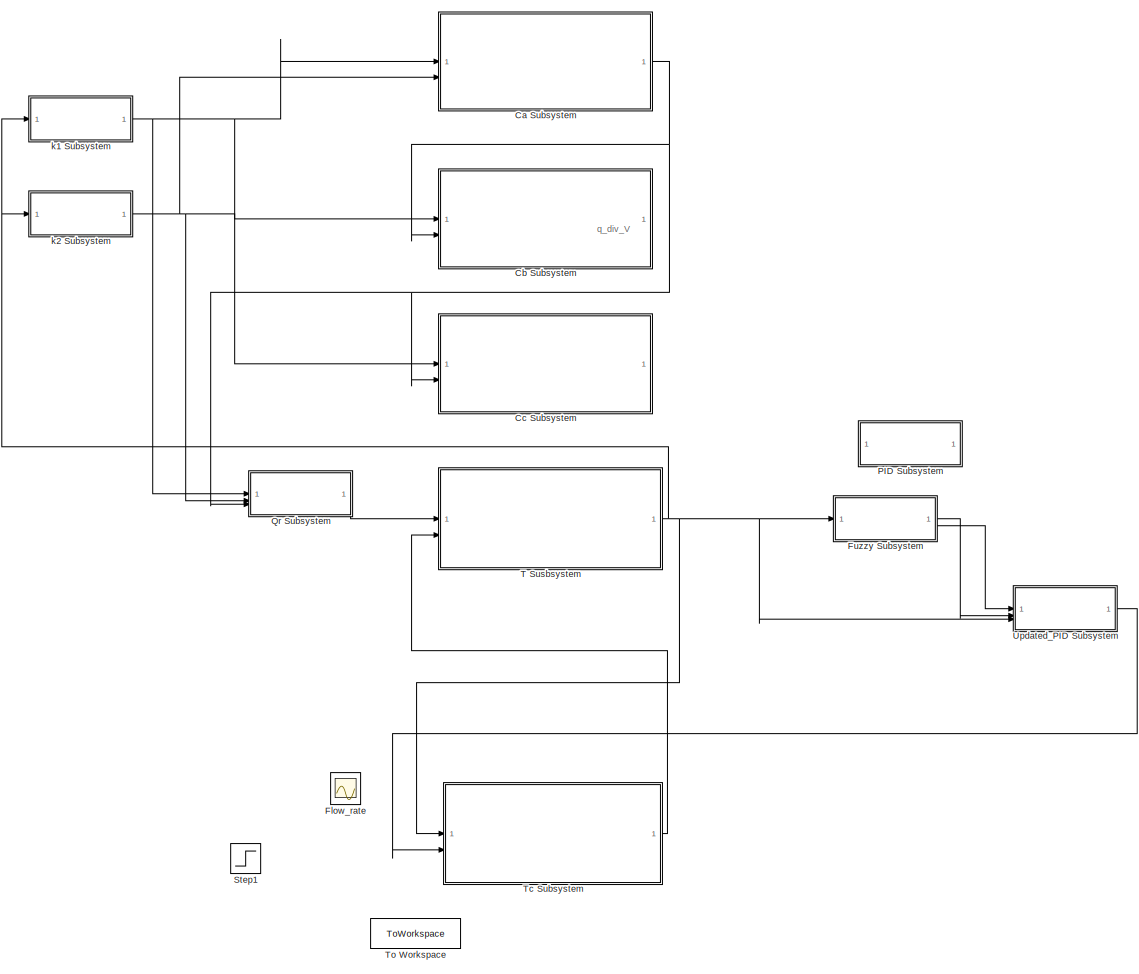
[diagram: root canvas - part 1/1, most of the canvas]
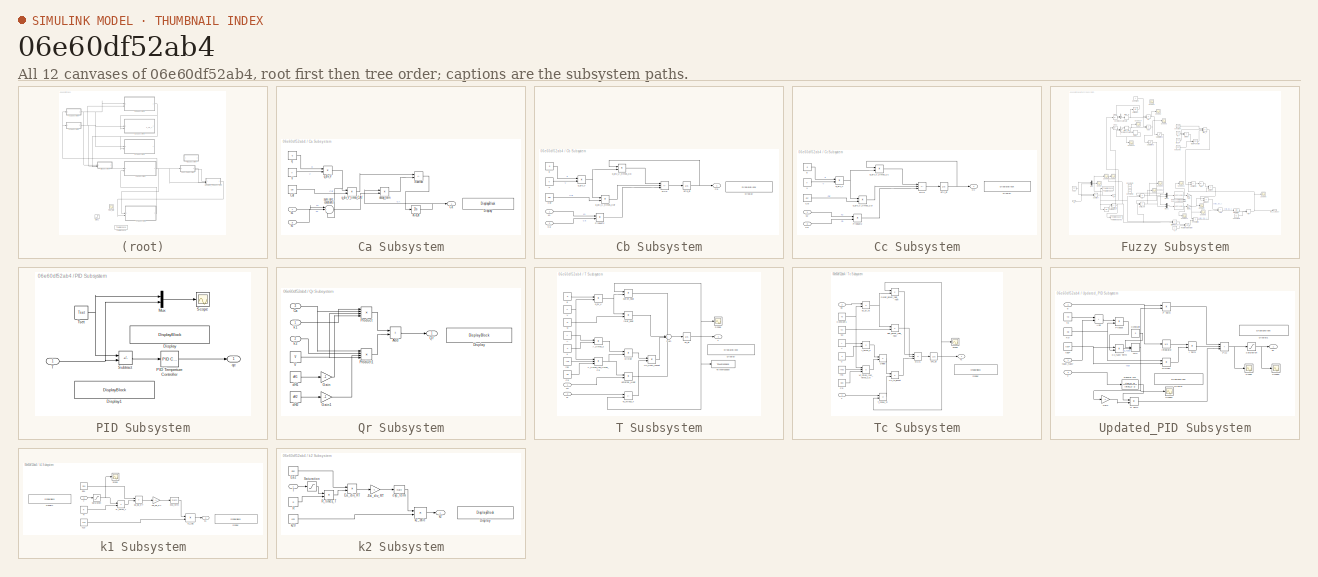
[diagram: thumbnail index - all 12 canvases of the model, root first then tree order]
MODEL slx_06e60df52ab4
KIND model
CONFIG AbsTol = auto
CONFIG EnableMultiTasking = off
CONFIG FixedStep = auto
CONFIG MaxStep = auto
CONFIG MinStep = 1e-6
CONFIG RelTol = 1e-4
CONFIG SampleTimeConstraint = Unconstrained
CONFIG SolverName = VariableStepAuto
CONFIG StartTime = 0.0
CONFIG StopTime = 1000
BLOCK [SubSystem] Ca Subsystem
BLOCK [Outport] Ca Subsystem/Ca
BLOCK [Constant] Ca Subsystem/Caf
  Value = Caf
BLOCK [DisplayBlock] Ca Subsystem/Display
  LabelPosition = Hide
  Transparency = 1
BLOCK [Sum] Ca Subsystem/Subtract
  IconShape = rectangular
  Inputs = +-
BLOCK [Constant] Ca Subsystem/V
  Value = V
BLOCK [Integrator] Ca Subsystem/dCa_dt
  InitialCondition = 4.22
BLOCK [Product] Ca Subsystem/decay_term
BLOCK [Inport] Ca Subsystem/k1
BLOCK [Inport] Ca Subsystem/k2
  Port = 2
BLOCK [Constant] Ca Subsystem/q
  Value = q
BLOCK [Product] Ca Subsystem/q_div_V
  Inputs = */
BLOCK [Product] Ca Subsystem/q_div_V_times_CAf
BLOCK [Sum] Ca Subsystem/sum_rate_constants
  Inputs = |+++
BLOCK [SubSystem] Cb Subsystem
BLOCK [Inport] Cb Subsystem/Ca
  Port = 2
BLOCK [Outport] Cb Subsystem/Cb
BLOCK [Constant] Cb Subsystem/Cbf
  Value = Cbf
BLOCK [DisplayBlock] Cb Subsystem/Display
  LabelPosition = Hide
  Transparency = 1
BLOCK [Product] Cb Subsystem/Product2
BLOCK [Sum] Cb Subsystem/RHS
  IconShape = rectangular
  Inputs = -++
BLOCK [Constant] Cb Subsystem/V
  Value = V
BLOCK [Integrator] Cb Subsystem/dCb_dt
BLOCK [Inport] Cb Subsystem/k1
BLOCK [Constant] Cb Subsystem/q
  Value = q
BLOCK [Product] Cb Subsystem/q_div_V
  Inputs = */
BLOCK [Product] Cb Subsystem/q_div_V_times_Cb
BLOCK [Product] Cb Subsystem/q_div_V_times_Cbf
BLOCK [SubSystem] Cc Subsystem
BLOCK [Inport] Cc Subsystem/Ca
  Port = 2
BLOCK [Outport] Cc Subsystem/Cc
BLOCK [Constant] Cc Subsystem/Ccf
  Value = Ccf
BLOCK [DisplayBlock] Cc Subsystem/Display
  LabelPosition = Hide
  Transparency = 1
BLOCK [Product] Cc Subsystem/Product2
BLOCK [Sum] Cc Subsystem/RHS
  IconShape = rectangular
  Inputs = -++
BLOCK [Constant] Cc Subsystem/V
  Value = V
BLOCK [Integrator] Cc Subsystem/dCc_dt
BLOCK [Inport] Cc Subsystem/k2
BLOCK [Constant] Cc Subsystem/q
  Value = q
BLOCK [Product] Cc Subsystem/q_div_V
  Inputs = */
BLOCK [Product] Cc Subsystem/q_div_V_times_Cc
BLOCK [Product] Cc Subsystem/q_div_V_times_Ccf
BLOCK [Scope] Flow_rate
  Floating = off
  NumInputPorts = 1
  ScopeSpecificationString = Simulink.scopes.TimeScopeBlockCfg('CurrentConfiguration', extmgr.ConfigurationSet(extmgr.Configuration('Core','General UI',true),extmgr.Configuration('Core','Source UI',true),extmgr.Configuration('Sources','WiredSimulink',true,'DataLoggingVariableName','ScopeData2'),extmgr.Configuration('Visuals','Time Domain',true,'SerializedDisplays',{struct('MinYLimReal','-0.01595','MaxYLimReal','0.00292','YLab...<+1448ch>
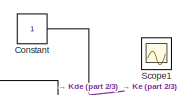
[diagram: Fuzzy Subsystem - part 1/3, top center region]
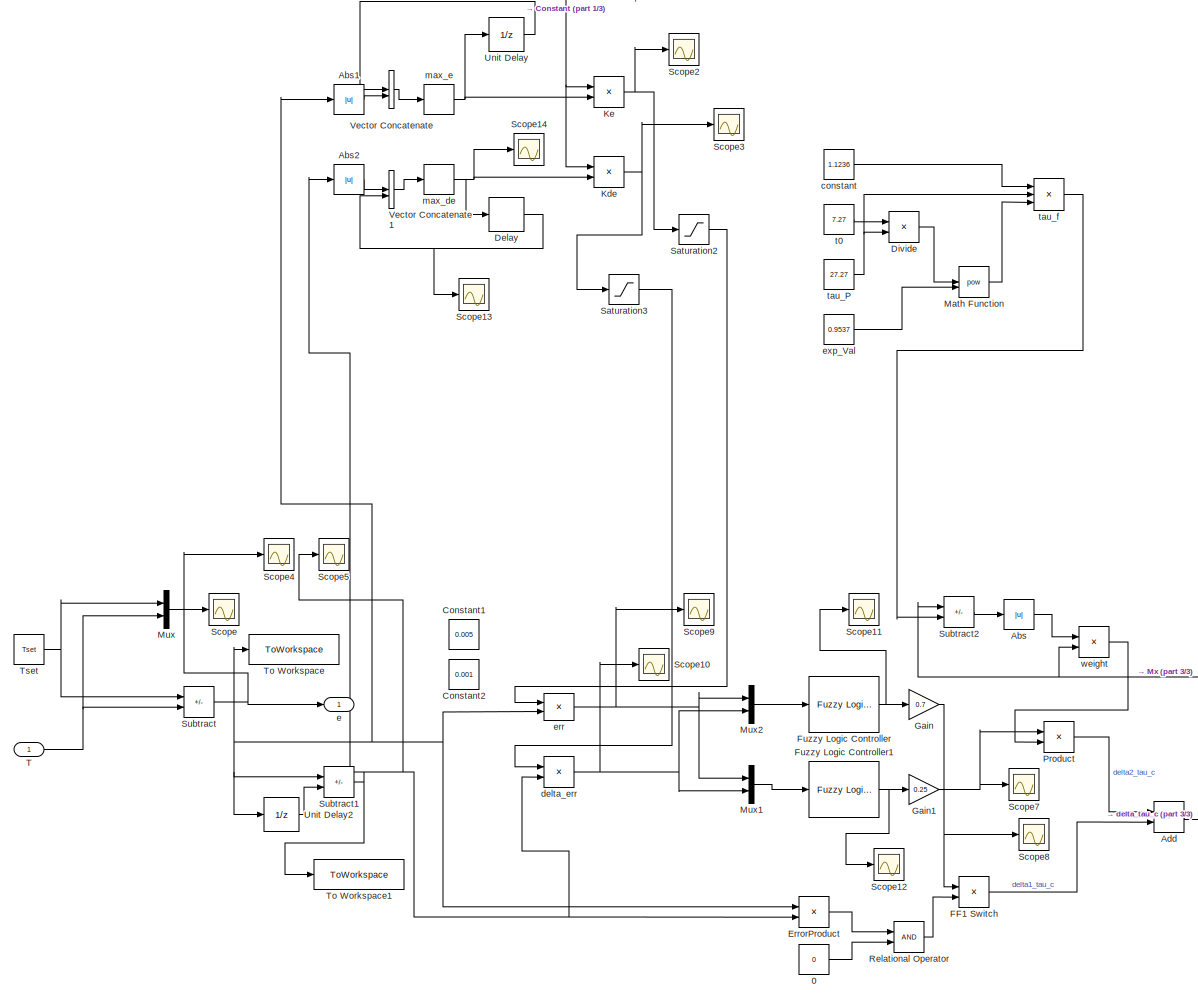
[diagram: Fuzzy Subsystem - part 2/3, most of the canvas]
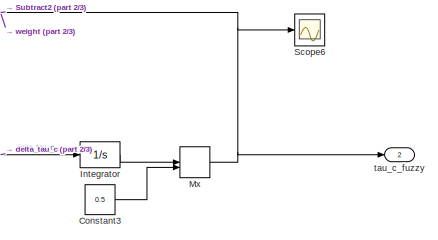
[diagram: Fuzzy Subsystem - part 3/3, bottom right region]
BLOCK [SubSystem] Fuzzy Subsystem
BLOCK [Constant] Fuzzy Subsystem/0
  Value = 0
BLOCK [Abs] Fuzzy Subsystem/Abs
  SaturateOnIntegerOverflow = off
BLOCK [Abs] Fuzzy Subsystem/Abs1
  SaturateOnIntegerOverflow = off
BLOCK [Abs] Fuzzy Subsystem/Abs2
  SaturateOnIntegerOverflow = off
BLOCK [Sum] Fuzzy Subsystem/Add
  IconShape = rectangular
BLOCK [Constant] Fuzzy Subsystem/Constant
BLOCK [Constant] Fuzzy Subsystem/Constant1
  Value = 0.005
BLOCK [Constant] Fuzzy Subsystem/Constant2
  Commented = on
  Value = 0.001
BLOCK [Constant] Fuzzy Subsystem/Constant3
  Value = 0.5
BLOCK [Delay] Fuzzy Subsystem/Delay
  DelayLength = 1
  InitialCondition = 0
  InputPortMap = u0
BLOCK [Product] Fuzzy Subsystem/Divide
  Inputs = */
BLOCK [Product] Fuzzy Subsystem/ErrorProduct
BLOCK [Product] Fuzzy Subsystem/FF1 Switch
BLOCK [Reference] Fuzzy Subsystem/Fuzzy Logic Controller  REF=fuzblock/Fuzzy Logic   (lib defined in mdl_858b3b3e7478)
Controller
  SourceBlock = fuzblock/Fuzzy Logic \nController
  SourceType = Fuzzy Inference System
BLOCK [Reference] Fuzzy Subsystem/Fuzzy Logic Controller1  REF=fuzblock/Fuzzy Logic   (lib defined in mdl_858b3b3e7478)
Controller
  SourceBlock = fuzblock/Fuzzy Logic \nController
  SourceType = Fuzzy Inference System
BLOCK [Gain] Fuzzy Subsystem/Gain
  Gain = 0.7
BLOCK [Gain] Fuzzy Subsystem/Gain1
  Gain = 0.25
BLOCK [Integrator] Fuzzy Subsystem/Integrator
  InitialCondition = 8.6842
BLOCK [Product] Fuzzy Subsystem/Kde
  Inputs = */
BLOCK [Product] Fuzzy Subsystem/Ke
  Inputs = */
BLOCK [Math] Fuzzy Subsystem/Math Function
  Operator = pow
BLOCK [Mux] Fuzzy Subsystem/Mux
  DisplayOption = bar
  Inputs = 2
BLOCK [Mux] Fuzzy Subsystem/Mux1
  DisplayOption = bar
  Inputs = 2
BLOCK [Mux] Fuzzy Subsystem/Mux2
  DisplayOption = bar
  Inputs = 2
BLOCK [MinMax] Fuzzy Subsystem/Mx
  Function = max
  Inputs = 2
BLOCK [Product] Fuzzy Subsystem/Product
BLOCK [RelationalOperator] Fuzzy Subsystem/Relational Operator
  InputSameDT = off
  OutDataTypeStr = boolean
  RndMeth = Simplest
BLOCK [Saturate] Fuzzy Subsystem/Saturation2
  LowerLimit = 0.01
  UpperLimit = 1
BLOCK [Saturate] Fuzzy Subsystem/Saturation3
  LowerLimit = 0.01
  UpperLimit = 1
BLOCK [Scope] Fuzzy Subsystem/Scope
  Floating = off
  NumInputPorts = 1
  ScopeSpecificationString = Simulink.scopes.TimeScopeBlockCfg('CurrentConfiguration', extmgr.ConfigurationSet(extmgr.Configuration('Core','General UI',true),extmgr.Configuration('Core','Source UI',true),extmgr.Configuration('Sources','WiredSimulink',true,'DataLoggingVariableName','ScopeData1'),extmgr.Configuration('Visuals','Time Domain',true,'SerializedDisplays',{struct('MinYLimReal','304.50917','MaxYLimReal','318.97083','Y...<+1480ch>
BLOCK [Scope] Fuzzy Subsystem/Scope1
  Floating = off
  NumInputPorts = 1
  ScopeSpecificationString = Simulink.scopes.TimeScopeBlockCfg('CurrentConfiguration', extmgr.ConfigurationSet(extmgr.Configuration('Core','General UI',true),extmgr.Configuration('Core','Source UI',true),extmgr.Configuration('Sources','WiredSimulink',true,'DataLoggingVariableName','ScopeData1'),extmgr.Configuration('Visuals','Time Domain',true),extmgr.Configuration('Tools','Plot Navigation',true),extmgr.Configuration('Tools',...<+40ch>
BLOCK [Scope] Fuzzy Subsystem/Scope10
  Floating = off
  NumInputPorts = 1
  ScopeSpecificationString = Simulink.scopes.TimeScopeBlockCfg('CurrentConfiguration', extmgr.ConfigurationSet(extmgr.Configuration('Core','General UI',true),extmgr.Configuration('Core','Source UI',true),extmgr.Configuration('Sources','WiredSimulink',true,'DataLoggingVariableName','ScopeData10'),extmgr.Configuration('Visuals','Time Domain',true,'SerializedDisplays',{struct('MinYLimReal','-1.25','MaxYLimReal','1.25','YLabelRea...<+1381ch>
BLOCK [Scope] Fuzzy Subsystem/Scope11
  Floating = off
  NumInputPorts = 1
  ScopeSpecificationString = Simulink.scopes.TimeScopeBlockCfg('CurrentConfiguration', extmgr.ConfigurationSet(extmgr.Configuration('Core','General UI',true),extmgr.Configuration('Core','Source UI',true),extmgr.Configuration('Sources','WiredSimulink',true,'DataLoggingVariableName','ScopeData1'),extmgr.Configuration('Visuals','Time Domain',true,'SerializedDisplays',{struct('MinYLimReal','0.00001','MaxYLimReal','0.00099','YLabe...<+1380ch>
BLOCK [Scope] Fuzzy Subsystem/Scope12
  Floating = off
  NumInputPorts = 1
  ScopeSpecificationString = Simulink.scopes.TimeScopeBlockCfg('CurrentConfiguration', extmgr.ConfigurationSet(extmgr.Configuration('Core','General UI',true),extmgr.Configuration('Core','Source UI',true),extmgr.Configuration('Sources','WiredSimulink',true,'DataLoggingVariableName','ScopeData2'),extmgr.Configuration('Visuals','Time Domain',true,'SerializedDisplays',{struct('MinYLimReal','-0.00029','MaxYLimReal','-0.00009','YLa...<+1385ch>
BLOCK [Scope] Fuzzy Subsystem/Scope13
  Floating = off
  NumInputPorts = 1
  ScopeSpecificationString = Simulink.scopes.TimeScopeBlockCfg('CurrentConfiguration', extmgr.ConfigurationSet(extmgr.Configuration('Core','General UI',true),extmgr.Configuration('Core','Source UI',true),extmgr.Configuration('Sources','WiredSimulink',true,'DataLoggingVariableName','ScopeData3'),extmgr.Configuration('Visuals','Time Domain',true,'SerializedDisplays',{struct('MinYLimReal','-0.78856','MaxYLimReal','7.09708','YLab...<+1419ch>
BLOCK [Scope] Fuzzy Subsystem/Scope14
  Floating = off
  NumInputPorts = 1
  ScopeSpecificationString = Simulink.scopes.TimeScopeBlockCfg('CurrentConfiguration', extmgr.ConfigurationSet(extmgr.Configuration('Core','General UI',true),extmgr.Configuration('Core','Source UI',true),extmgr.Configuration('Sources','WiredSimulink',true,'DataLoggingVariableName','ScopeData4'),extmgr.Configuration('Visuals','Time Domain',true,'SerializedDisplays',{struct('MinYLimReal','0.29108','MaxYLimReal','7.38024','YLabe...<+1363ch>
BLOCK [Scope] Fuzzy Subsystem/Scope2
  Floating = off
  NumInputPorts = 1
  ScopeSpecificationString = Simulink.scopes.TimeScopeBlockCfg('CurrentConfiguration', extmgr.ConfigurationSet(extmgr.Configuration('Core','General UI',true),extmgr.Configuration('Core','Source UI',true),extmgr.Configuration('Sources','WiredSimulink',true,'DataLoggingVariableName','ScopeData2'),extmgr.Configuration('Visuals','Time Domain',true,'SerializedDisplays',{struct('MinYLimReal','0.09938','MaxYLimReal','0.21118','YLabe...<+1359ch>
BLOCK [Scope] Fuzzy Subsystem/Scope3
  Floating = off
  NumInputPorts = 1
  ScopeSpecificationString = Simulink.scopes.TimeScopeBlockCfg('CurrentConfiguration', extmgr.ConfigurationSet(extmgr.Configuration('Core','General UI',true),extmgr.Configuration('Core','Source UI',true),extmgr.Configuration('Sources','WiredSimulink',true,'DataLoggingVariableName','ScopeData3'),extmgr.Configuration('Visuals','Time Domain',true,'SerializedDisplays',{struct('MinYLimReal','0.04363','MaxYLimReal','1.10626','YLabe...<+1360ch>
BLOCK [Scope] Fuzzy Subsystem/Scope4
  Floating = off
  NumInputPorts = 1
  ScopeSpecificationString = Simulink.scopes.TimeScopeBlockCfg('CurrentConfiguration', extmgr.ConfigurationSet(extmgr.Configuration('Core','General UI',true),extmgr.Configuration('Core','Source UI',true),extmgr.Configuration('Sources','WiredSimulink',true,'DataLoggingVariableName','ScopeData4'),extmgr.Configuration('Visuals','Time Domain',true,'SerializedDisplays',{struct('MinYLimReal','-3.9705','MaxYLimReal','10.49086','YLab...<+1398ch>
BLOCK [Scope] Fuzzy Subsystem/Scope5
  Floating = off
  NumInputPorts = 1
  ScopeSpecificationString = Simulink.scopes.TimeScopeBlockCfg('CurrentConfiguration', extmgr.ConfigurationSet(extmgr.Configuration('Core','General UI',true),extmgr.Configuration('Core','Source UI',true),extmgr.Configuration('Sources','WiredSimulink',true,'DataLoggingVariableName','ScopeData5'),extmgr.Configuration('Visuals','Time Domain',true,'SerializedDisplays',{struct('MinYLimReal','-6.16846','MaxYLimReal','8.09796','YLab...<+1397ch>
BLOCK [Scope] Fuzzy Subsystem/Scope6
  Floating = off
  NumInputPorts = 1
  ScopeSpecificationString = Simulink.scopes.TimeScopeBlockCfg('CurrentConfiguration', extmgr.ConfigurationSet(extmgr.Configuration('Core','General UI',true),extmgr.Configuration('Core','Source UI',true),extmgr.Configuration('Sources','WiredSimulink',true,'DataLoggingVariableName','ScopeData6'),extmgr.Configuration('Visuals','Time Domain',true,'SerializedDisplays',{struct('MinYLimReal','8.67114','MaxYLimReal','8.80172','YLabe...<+1386ch>
BLOCK [Scope] Fuzzy Subsystem/Scope7
  Floating = off
  NumInputPorts = 1
  ScopeSpecificationString = Simulink.scopes.TimeScopeBlockCfg('CurrentConfiguration', extmgr.ConfigurationSet(extmgr.Configuration('Core','General UI',true),extmgr.Configuration('Core','Source UI',true),extmgr.Configuration('Sources','WiredSimulink',true,'DataLoggingVariableName','ScopeData7'),extmgr.Configuration('Visuals','Time Domain',true,'SerializedDisplays',{struct('MinYLimReal','0.0002808576','MaxYLimReal','0.00028086...<+1421ch>
BLOCK [Scope] Fuzzy Subsystem/Scope8
  Floating = off
  NumInputPorts = 1
  ScopeSpecificationString = Simulink.scopes.TimeScopeBlockCfg('CurrentConfiguration', extmgr.ConfigurationSet(extmgr.Configuration('Core','General UI',true),extmgr.Configuration('Core','Source UI',true),extmgr.Configuration('Sources','WiredSimulink',true,'DataLoggingVariableName','ScopeData8'),extmgr.Configuration('Visuals','Time Domain',true,'SerializedDisplays',{struct('MinYLimReal','0.00001','MaxYLimReal','0.00069','YLabe...<+1361ch>
BLOCK [Scope] Fuzzy Subsystem/Scope9
  Floating = off
  NumInputPorts = 1
  ScopeSpecificationString = Simulink.scopes.TimeScopeBlockCfg('CurrentConfiguration', extmgr.ConfigurationSet(extmgr.Configuration('Core','General UI',true),extmgr.Configuration('Core','Source UI',true),extmgr.Configuration('Sources','WiredSimulink',true,'DataLoggingVariableName','ScopeData9'),extmgr.Configuration('Visuals','Time Domain',true,'SerializedDisplays',{struct('MinYLimReal','-0.47347','MaxYLimReal','1.16372','YLab...<+1362ch>
BLOCK [Sum] Fuzzy Subsystem/Subtract
  IconShape = rectangular
  Inputs = +-
BLOCK [Sum] Fuzzy Subsystem/Subtract1
  IconShape = rectangular
  Inputs = +-
BLOCK [Sum] Fuzzy Subsystem/Subtract2
  IconShape = rectangular
  Inputs = +-
BLOCK [Inport] Fuzzy Subsystem/T
BLOCK [ToWorkspace] Fuzzy Subsystem/To Workspace
  FixptAsFi = on
  MaxDataPoints = inf
  SampleTime = -1
  VariableName = e
BLOCK [ToWorkspace] Fuzzy Subsystem/To Workspace1
  FixptAsFi = on
  MaxDataPoints = inf
  SampleTime = -1
  VariableName = delta_e
BLOCK [Constant] Fuzzy Subsystem/Tset
  Value = Tset
  VectorParams1D = off
BLOCK [UnitDelay] Fuzzy Subsystem/Unit Delay
  HasFrameUpgradeWarning = on
  InitialCondition = 0.1
  SampleTime = -1
BLOCK [UnitDelay] Fuzzy Subsystem/Unit Delay2
  HasFrameUpgradeWarning = on
  InitialCondition = 4
  SampleTime = -1
BLOCK [Concatenate] Fuzzy Subsystem/Vector Concatenate
BLOCK [Concatenate] Fuzzy Subsystem/Vector Concatenate1
BLOCK [Constant] Fuzzy Subsystem/constant
  Value = 1.1236
BLOCK [Product] Fuzzy Subsystem/delta_err
BLOCK [Outport] Fuzzy Subsystem/e
BLOCK [Product] Fuzzy Subsystem/err
BLOCK [Constant] Fuzzy Subsystem/exp_Val
  Value = 0.9537
BLOCK [MinMax] Fuzzy Subsystem/max_de
  Function = max
BLOCK [MinMax] Fuzzy Subsystem/max_e
  Function = max
BLOCK [Constant] Fuzzy Subsystem/t0
  Value = 7.27
BLOCK [Constant] Fuzzy Subsystem/tau_P
  Value = 27.27
BLOCK [Outport] Fuzzy Subsystem/tau_c_fuzzy
  Port = 2
BLOCK [Product] Fuzzy Subsystem/tau_f
  Inputs = 3
BLOCK [Product] Fuzzy Subsystem/weight
  Inputs = */
BLOCK [SubSystem] PID Subsystem
BLOCK [DisplayBlock] PID Subsystem/Display
  LabelPosition = Hide
  Transparency = 1
BLOCK [DisplayBlock] PID Subsystem/Display1
  LabelPosition = Hide
  Transparency = 1
BLOCK [Mux] PID Subsystem/Mux
  DisplayOption = bar
  Inputs = 2
BLOCK [Reference] PID Subsystem/PID Tempreture Controller  REF=slpidlib/PID Controller
  LibrarySourceBlock = simulink/Continuous/PID Controller
  SourceBlock = slpidlib/PID Controller
  SourceType = PID 1dof
BLOCK [Scope] PID Subsystem/Scope
  Floating = off
  NumInputPorts = 1
  ScopeSpecificationString = Simulink.scopes.TimeScopeBlockCfg('CurrentConfiguration', extmgr.ConfigurationSet(extmgr.Configuration('Core','General UI',true),extmgr.Configuration('Core','Source UI',true),extmgr.Configuration('Sources','WiredSimulink',true,'DataLoggingVariableName','ScopeData1'),extmgr.Configuration('Visuals','Time Domain',true,'SerializedDisplays',{struct('MinYLimReal','304.41008','MaxYLimReal','321.83642','Y...<+1473ch>
BLOCK [Sum] PID Subsystem/Subtract
  IconShape = rectangular
  Inputs = +-
BLOCK [Inport] PID Subsystem/T
BLOCK [Constant] PID Subsystem/Tset
  Value = Tset
BLOCK [Outport] PID Subsystem/qc
BLOCK [SubSystem] Qr Subsystem
BLOCK [Sum] Qr Subsystem/Add
  IconShape = rectangular
BLOCK [Inport] Qr Subsystem/Ca
  Port = 3
BLOCK [DisplayBlock] Qr Subsystem/Display
  LabelPosition = Hide
  Transparency = 1
BLOCK [Gain] Qr Subsystem/Gain
  Gain = -1
BLOCK [Gain] Qr Subsystem/Gain1
  Gain = -1
BLOCK [Product] Qr Subsystem/Product
  Inputs = 4
BLOCK [Product] Qr Subsystem/Product1
  Inputs = 4
BLOCK [Outport] Qr Subsystem/Qr
BLOCK [Constant] Qr Subsystem/V
  Value = V
BLOCK [Constant] Qr Subsystem/dH1
  Value = dH1
BLOCK [Constant] Qr Subsystem/dH2
  Value = dH2
BLOCK [Inport] Qr Subsystem/k1
BLOCK [Inport] Qr Subsystem/k2
  Port = 2
BLOCK [Step] Step1
  After = 0.010
  Before = 0.005
  Commented = on
  SampleTime = 0
  Time = 200
BLOCK [SubSystem] T Susbsystem
BLOCK [Constant] T Susbsystem/A
  Value = A
BLOCK [Product] T Susbsystem/A_times_u
BLOCK [Constant] T Susbsystem/Cp
  Value = Cp
BLOCK [DisplayBlock] T Susbsystem/Display
  LabelPosition = Hide
  Transparency = 1
BLOCK [Product] T Susbsystem/Divide
  Inputs = */
BLOCK [Product] T Susbsystem/HT_from_jacket
BLOCK [Inport] T Susbsystem/Qr
BLOCK [Scope] T Susbsystem/Scope
  Floating = off
  NumInputPorts = 1
  ScopeSpecificationString = Simulink.scopes.TimeScopeBlockCfg('CurrentConfiguration', extmgr.ConfigurationSet(extmgr.Configuration('Core','General UI',true),extmgr.Configuration('Core','Source UI',true),extmgr.Configuration('Sources','WiredSimulink',true,'DataLoggingVariableName','ScopeData3'),extmgr.Configuration('Visuals','Time Domain',true,'SerializedDisplays',{struct('MinYLimReal','304.50917','MaxYLimReal','318.97083','Y...<+1378ch>
BLOCK [Sum] T Susbsystem/Sum
  Inputs = -+++
BLOCK [Outport] T Susbsystem/T
BLOCK [Inport] T Susbsystem/Tc
  Port = 2
BLOCK [Sum] T Susbsystem/Tc_minus_T
  IconShape = rectangular
  Inputs = +-
BLOCK [Constant] T Susbsystem/Tf
  Value = Tf
BLOCK [ToWorkspace] T Susbsystem/To Workspace
  FixptAsFi = on
  MaxDataPoints = inf
  SampleTime = -1
  VariableName = T_data
BLOCK [Constant] T Susbsystem/V
  Value = V
BLOCK [Product] T Susbsystem/V_times_rho_times_Cp
  Inputs = 3
BLOCK [Integrator] T Susbsystem/dT_dt
  InitialCondition = 310
BLOCK [Product] T Susbsystem/external_Heat
  Inputs = /*
BLOCK [Product] T Susbsystem/inlet_heat
BLOCK [Product] T Susbsystem/outlet_heat
BLOCK [Constant] T Susbsystem/q
  Value = q
BLOCK [Product] T Susbsystem/q_by_V
  Inputs = */
BLOCK [Constant] T Susbsystem/rho
  Value = rho
BLOCK [Constant] T Susbsystem/u
  Value = u
BLOCK [SubSystem] Tc Subsystem
BLOCK [Constant] Tc Subsystem/A
  Value = A
BLOCK [Product] Tc Subsystem/A_times_u
BLOCK [Constant] Tc Subsystem/Constant1
  Value = Vc
BLOCK [Constant] Tc Subsystem/Cp
  Value = Cpc
BLOCK [DisplayBlock] Tc Subsystem/Display
  LabelPosition = Hide
  Transparency = 1
BLOCK [Product] Tc Subsystem/Divide
  Inputs = */
BLOCK [Product] Tc Subsystem/HT_to_jacket
BLOCK [Product] Tc Subsystem/Outlet_jacket_fluid_flow
BLOCK [Sum] Tc Subsystem/RHS
  IconShape = rectangular
  Inputs = -++
BLOCK [Scope] Tc Subsystem/Scope
  Floating = off
  NumInputPorts = 1
  ScopeSpecificationString = Simulink.scopes.TimeScopeBlockCfg('CurrentConfiguration', extmgr.ConfigurationSet(extmgr.Configuration('Core','General UI',true),extmgr.Configuration('Core','Source UI',true),extmgr.Configuration('Sources','WiredSimulink',true,'DataLoggingVariableName','ScopeData3'),extmgr.Configuration('Visuals','Time Domain',true,'SerializedDisplays',{struct('MinYLimReal','286.56232','MaxYLimReal','320.93913','Y...<+1408ch>
BLOCK [Inport] Tc Subsystem/T
BLOCK [Sum] Tc Subsystem/T_minus_Tc
  IconShape = rectangular
  Inputs = +-
BLOCK [Outport] Tc Subsystem/Tc
BLOCK [Constant] Tc Subsystem/Tcf
  Value = Tcf
BLOCK [Product] Tc Subsystem/Vc_times_rhoc_times_Cp
  Inputs = 3
BLOCK [Integrator] Tc Subsystem/dTc_dt
  InitialCondition = 290
BLOCK [Product] Tc Subsystem/inlet_jacket_fluid_flow
BLOCK [Inport] Tc Subsystem/qc
  Port = 2
BLOCK [Product] Tc Subsystem/qc_by_Vc
  Inputs = */
BLOCK [Constant] Tc Subsystem/rho
  Value = rhoc
BLOCK [Constant] Tc Subsystem/u
  Value = u
BLOCK [ToWorkspace] To Workspace
  Commented = on
  FixptAsFi = on
  MaxDataPoints = inf
  SampleTime = -1
  VariableName = qc_data
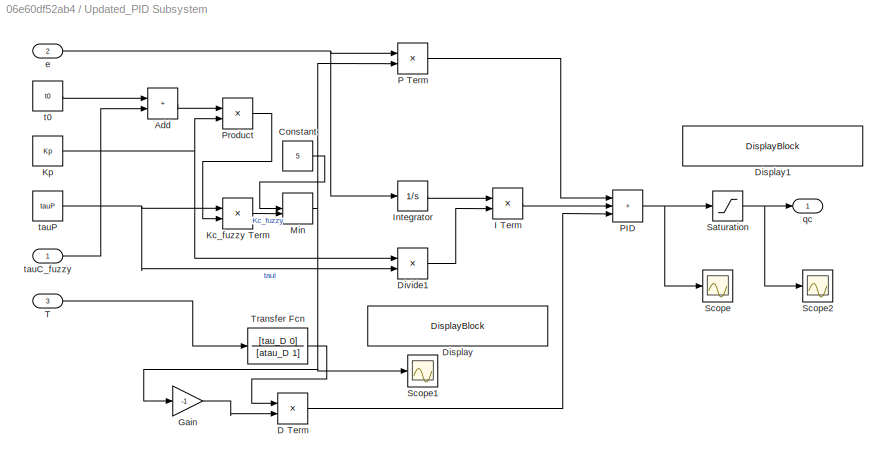
BLOCK [SubSystem] Updated_PID Subsystem
BLOCK [Sum] Updated_PID Subsystem/Add
  IconShape = rectangular
BLOCK [Constant] Updated_PID Subsystem/Constant
  Value = 5
BLOCK [Product] Updated_PID Subsystem/D Term
BLOCK [DisplayBlock] Updated_PID Subsystem/Display
  LabelPosition = Hide
  Transparency = 1
BLOCK [DisplayBlock] Updated_PID Subsystem/Display1
  LabelPosition = Hide
  Transparency = 1
BLOCK [Product] Updated_PID Subsystem/Divide1
  Inputs = */
BLOCK [Gain] Updated_PID Subsystem/Gain
  Gain = -1
BLOCK [Product] Updated_PID Subsystem/I Term
BLOCK [Integrator] Updated_PID Subsystem/Integrator
BLOCK [Product] Updated_PID Subsystem/Kc_fuzzy Term
  Inputs = */
BLOCK [Constant] Updated_PID Subsystem/Kp
  Value = Kp
BLOCK [MinMax] Updated_PID Subsystem/Min
  Inputs = 2
BLOCK [Product] Updated_PID Subsystem/P Term
BLOCK [Sum] Updated_PID Subsystem/PID
  IconShape = rectangular
  Inputs = +++
BLOCK [Product] Updated_PID Subsystem/Product
BLOCK [Saturate] Updated_PID Subsystem/Saturation
  LowerLimit = 0
  UpperLimit = 0.015
BLOCK [Scope] Updated_PID Subsystem/Scope
  Floating = off
  NumInputPorts = 1
  ScopeSpecificationString = Simulink.scopes.TimeScopeBlockCfg('CurrentConfiguration', extmgr.ConfigurationSet(extmgr.Configuration('Core','General UI',true),extmgr.Configuration('Core','Source UI',true),extmgr.Configuration('Sources','WiredSimulink',true,'DataLoggingVariableName','ScopeData1'),extmgr.Configuration('Visuals','Time Domain',true,'SerializedDisplays',{struct('MinYLimReal','-9087.21595','MaxYLimReal','1272.76358'...<+1413ch>
BLOCK [Scope] Updated_PID Subsystem/Scope1
  Floating = off
  NumInputPorts = 1
  ScopeSpecificationString = Simulink.scopes.TimeScopeBlockCfg('CurrentConfiguration', extmgr.ConfigurationSet(extmgr.Configuration('Core','General UI',true),extmgr.Configuration('Core','Source UI',true),extmgr.Configuration('Sources','WiredSimulink',true,'DataLoggingVariableName','ScopeData2'),extmgr.Configuration('Visuals','Time Domain',true),extmgr.Configuration('Tools','Plot Navigation',true),extmgr.Configuration('Tools',...<+40ch>
BLOCK [Scope] Updated_PID Subsystem/Scope2
  Floating = off
  NumInputPorts = 1
  ScopeSpecificationString = Simulink.scopes.TimeScopeBlockCfg('CurrentConfiguration', extmgr.ConfigurationSet(extmgr.Configuration('Core','General UI',true),extmgr.Configuration('Core','Source UI',true),extmgr.Configuration('Sources','WiredSimulink',true,'DataLoggingVariableName','ScopeData11'),extmgr.Configuration('Visuals','Time Domain',true,'SerializedDisplays',{struct('MinYLimReal','-0.00187','MaxYLimReal','0.01688','YLa...<+1370ch>
BLOCK [Inport] Updated_PID Subsystem/T
  Port = 3
BLOCK [TransferFcn] Updated_PID Subsystem/Transfer Fcn
  Denominator = [atau_D 1]
  Numerator = [tau_D 0]
  ParameterTunability = Optimized
BLOCK [Inport] Updated_PID Subsystem/e
  Port = 2
BLOCK [Outport] Updated_PID Subsystem/qc
BLOCK [Constant] Updated_PID Subsystem/t0
  Value = t0
BLOCK [Inport] Updated_PID Subsystem/tauC_fuzzy
BLOCK [Constant] Updated_PID Subsystem/tauP
  Value = tauP
BLOCK [SubSystem] k1 Subsystem
BLOCK [Gain] k1 Subsystem/-Ea_div_RT
  Gain = -1
BLOCK [DisplayBlock] k1 Subsystem/Display
  LabelPosition = Hide
  Transparency = 1
BLOCK [DisplayBlock] k1 Subsystem/Display1
  LabelPosition = Hide
  Transparency = 1
BLOCK [Constant] k1 Subsystem/Ea1
  Value = Ea1
BLOCK [Product] k1 Subsystem/Ea_div_RT
  Inputs = */
BLOCK [Constant] k1 Subsystem/R
  Value = R
BLOCK [Product] k1 Subsystem/R_times_T
BLOCK [Saturate] k1 Subsystem/Saturation
  LowerLimit = 0.001
  UpperLimit = Inf
BLOCK [Scope] k1 Subsystem/Scope
  Floating = off
  NumInputPorts = 1
  ScopeSpecificationString = Simulink.scopes.TimeScopeBlockCfg('CurrentConfiguration', extmgr.ConfigurationSet(extmgr.Configuration('Core','General UI',true),extmgr.Configuration('Core','Source UI',true),extmgr.Configuration('Sources','WiredSimulink',true,'DataLoggingVariableName','ScopeData1'),extmgr.Configuration('Visuals','Time Domain',true,'SerializedDisplays',{struct('MinYLimReal','300.84404','MaxYLimReal','312.12844','Y...<+1447ch>
BLOCK [Inport] k1 Subsystem/T
BLOCK [Math] k1 Subsystem/exp_term
BLOCK [Outport] k1 Subsystem/k1
BLOCK [Constant] k1 Subsystem/k10
  Value = k10
BLOCK [Product] k1 Subsystem/k1_calc
BLOCK [SubSystem] k2 Subsystem
BLOCK [Gain] k2 Subsystem/-Ea_div_RT
  Gain = -1
BLOCK [DisplayBlock] k2 Subsystem/Display
  LabelPosition = Hide
  Transparency = 1
BLOCK [Constant] k2 Subsystem/Ea2
  Value = Ea2
BLOCK [Product] k2 Subsystem/Ea_div_RT
  Inputs = */
BLOCK [Constant] k2 Subsystem/R
  Value = R
BLOCK [Product] k2 Subsystem/R_times_T
BLOCK [Saturate] k2 Subsystem/Saturation
  LowerLimit = 0.001
  UpperLimit = Inf
BLOCK [Inport] k2 Subsystem/T
BLOCK [Math] k2 Subsystem/exp_term
BLOCK [Outport] k2 Subsystem/k2
BLOCK [Constant] k2 Subsystem/k20
  Value = k20
BLOCK [Product] k2 Subsystem/k2_calc
ANNOTATION (root): q_div_V
LINE Ca Subsystem/Caf:1 -> Ca Subsystem/q_div_V_times_CAf:2
LINE Ca Subsystem/Subtract:1 -> Ca Subsystem/dCa_dt:1
LINE Ca Subsystem/V:1 -> Ca Subsystem/q_div_V:2
NET Ca Subsystem/dCa_dt:1 -> Ca Subsystem/Ca:1, Ca Subsystem/decay_term:1
LINE Ca Subsystem/decay_term:1 -> Ca Subsystem/Subtract:2
LINE Ca Subsystem/k1:1 -> Ca Subsystem/sum_rate_constants:1
LINE Ca Subsystem/k2:1 -> Ca Subsystem/sum_rate_constants:2
LINE Ca Subsystem/q:1 -> Ca Subsystem/q_div_V:1
NET Ca Subsystem/q_div_V:1 -> Ca Subsystem/q_div_V_times_CAf:1, Ca Subsystem/sum_rate_constants:3
LINE Ca Subsystem/q_div_V_times_CAf:1 -> Ca Subsystem/Subtract:1
LINE Ca Subsystem/sum_rate_constants:1 -> Ca Subsystem/decay_term:2
NET Ca Subsystem:1 -> Cb Subsystem:2, Cc Subsystem:2, Qr Subsystem:3
LINE Cb Subsystem/Ca:1 -> Cb Subsystem/Product2:2
LINE Cb Subsystem/Cbf:1 -> Cb Subsystem/q_div_V_times_Cbf:2
LINE Cb Subsystem/Product2:1 -> Cb Subsystem/RHS:3
LINE Cb Subsystem/RHS:1 -> Cb Subsystem/dCb_dt:1
LINE Cb Subsystem/V:1 -> Cb Subsystem/q_div_V:2
NET Cb Subsystem/dCb_dt:1 -> Cb Subsystem/Cb:1, Cb Subsystem/q_div_V_times_Cb:1
LINE Cb Subsystem/k1:1 -> Cb Subsystem/Product2:1
LINE Cb Subsystem/q:1 -> Cb Subsystem/q_div_V:1
NET Cb Subsystem/q_div_V:1 -> Cb Subsystem/q_div_V_times_Cb:2, Cb Subsystem/q_div_V_times_Cbf:1
LINE Cb Subsystem/q_div_V_times_Cb:1 -> Cb Subsystem/RHS:1
LINE Cb Subsystem/q_div_V_times_Cbf:1 -> Cb Subsystem/RHS:2
LINE Cc Subsystem/Ca:1 -> Cc Subsystem/Product2:2
LINE Cc Subsystem/Ccf:1 -> Cc Subsystem/q_div_V_times_Ccf:2
LINE Cc Subsystem/Product2:1 -> Cc Subsystem/RHS:3
LINE Cc Subsystem/RHS:1 -> Cc Subsystem/dCc_dt:1
LINE Cc Subsystem/V:1 -> Cc Subsystem/q_div_V:2
NET Cc Subsystem/dCc_dt:1 -> Cc Subsystem/Cc:1, Cc Subsystem/q_div_V_times_Cc:1
LINE Cc Subsystem/k2:1 -> Cc Subsystem/Product2:1
LINE Cc Subsystem/q:1 -> Cc Subsystem/q_div_V:1
NET Cc Subsystem/q_div_V:1 -> Cc Subsystem/q_div_V_times_Cc:2, Cc Subsystem/q_div_V_times_Ccf:1
LINE Cc Subsystem/q_div_V_times_Cc:1 -> Cc Subsystem/RHS:1
LINE Cc Subsystem/q_div_V_times_Ccf:1 -> Cc Subsystem/RHS:2
LINE Fuzzy Subsystem/0:1 -> Fuzzy Subsystem/Relational Operator:2
LINE Fuzzy Subsystem/Abs1:1 -> Fuzzy Subsystem/Vector Concatenate:2
LINE Fuzzy Subsystem/Abs2:1 -> Fuzzy Subsystem/Vector Concatenate1:1
LINE Fuzzy Subsystem/Abs:1 -> Fuzzy Subsystem/weight:1
LINE Fuzzy Subsystem/Add:1 -> Fuzzy Subsystem/Integrator:1
LINE Fuzzy Subsystem/Constant3:1 -> Fuzzy Subsystem/Mx:2
NET Fuzzy Subsystem/Constant:1 -> Fuzzy Subsystem/Kde:1, Fuzzy Subsystem/Ke:1
NET Fuzzy Subsystem/Delay:1 -> Fuzzy Subsystem/Scope13:1, Fuzzy Subsystem/Vector Concatenate1:2
LINE Fuzzy Subsystem/Divide:1 -> Fuzzy Subsystem/Math Function:1
LINE Fuzzy Subsystem/ErrorProduct:1 -> Fuzzy Subsystem/Relational Operator:1
LINE Fuzzy Subsystem/FF1 Switch:1 -> Fuzzy Subsystem/Add:2
NET Fuzzy Subsystem/Fuzzy Logic Controller1:1 -> Fuzzy Subsystem/Gain1:1, Fuzzy Subsystem/Scope12:1
NET Fuzzy Subsystem/Fuzzy Logic Controller:1 -> Fuzzy Subsystem/Gain:1, Fuzzy Subsystem/Scope11:1
NET Fuzzy Subsystem/Gain1:1 -> Fuzzy Subsystem/Product:1, Fuzzy Subsystem/Scope7:1
NET Fuzzy Subsystem/Gain:1 -> Fuzzy Subsystem/FF1 Switch:1, Fuzzy Subsystem/Scope8:1
LINE Fuzzy Subsystem/Integrator:1 -> Fuzzy Subsystem/Mx:1
NET Fuzzy Subsystem/Kde:1 -> Fuzzy Subsystem/Saturation3:1, Fuzzy Subsystem/Scope3:1
NET Fuzzy Subsystem/Ke:1 -> Fuzzy Subsystem/Saturation2:1, Fuzzy Subsystem/Scope2:1
LINE Fuzzy Subsystem/Math Function:1 -> Fuzzy Subsystem/tau_f:3
LINE Fuzzy Subsystem/Mux1:1 -> Fuzzy Subsystem/Fuzzy Logic Controller1:1
LINE Fuzzy Subsystem/Mux2:1 -> Fuzzy Subsystem/Fuzzy Logic Controller:1
LINE Fuzzy Subsystem/Mux:1 -> Fuzzy Subsystem/Scope:1
NET Fuzzy Subsystem/Mx:1 -> Fuzzy Subsystem/Scope6:1, Fuzzy Subsystem/Subtract2:1, Fuzzy Subsystem/tau_c_fuzzy:1, Fuzzy Subsystem/weight:2
LINE Fuzzy Subsystem/Product:1 -> Fuzzy Subsystem/Add:1
LINE Fuzzy Subsystem/Relational Operator:1 -> Fuzzy Subsystem/FF1 Switch:2
LINE Fuzzy Subsystem/Saturation2:1 -> Fuzzy Subsystem/err:1
LINE Fuzzy Subsystem/Saturation3:1 -> Fuzzy Subsystem/delta_err:1
NET Fuzzy Subsystem/Subtract1:1 -> Fuzzy Subsystem/Abs2:1, Fuzzy Subsystem/ErrorProduct:2, Fuzzy Subsystem/Scope5:1, Fuzzy Subsystem/To Workspace1:1, Fuzzy Subsystem/delta_err:2
LINE Fuzzy Subsystem/Subtract2:1 -> Fuzzy Subsystem/Abs:1
NET Fuzzy Subsystem/Subtract:1 -> Fuzzy Subsystem/Abs1:1, Fuzzy Subsystem/ErrorProduct:1, Fuzzy Subsystem/Scope4:1, Fuzzy Subsystem/Subtract1:1, Fuzzy Subsystem/To Workspace:1, Fuzzy Subsystem/Unit Delay2:1, Fuzzy Subsystem/e:1, Fuzzy Subsystem/err:2
NET Fuzzy Subsystem/T:1 -> Fuzzy Subsystem/Mux:2, Fuzzy Subsystem/Subtract:2
NET Fuzzy Subsystem/Tset:1 -> Fuzzy Subsystem/Mux:1, Fuzzy Subsystem/Subtract:1
LINE Fuzzy Subsystem/Unit Delay2:1 -> Fuzzy Subsystem/Subtract1:2
LINE Fuzzy Subsystem/Unit Delay:1 -> Fuzzy Subsystem/Vector Concatenate:1
LINE Fuzzy Subsystem/Vector Concatenate1:1 -> Fuzzy Subsystem/max_de:1
LINE Fuzzy Subsystem/Vector Concatenate:1 -> Fuzzy Subsystem/max_e:1
LINE Fuzzy Subsystem/constant:1 -> Fuzzy Subsystem/tau_f:1
NET Fuzzy Subsystem/delta_err:1 -> Fuzzy Subsystem/Mux1:2, Fuzzy Subsystem/Mux2:2, Fuzzy Subsystem/Scope10:1
NET Fuzzy Subsystem/err:1 -> Fuzzy Subsystem/Mux1:1, Fuzzy Subsystem/Mux2:1, Fuzzy Subsystem/Scope9:1
LINE Fuzzy Subsystem/exp_Val:1 -> Fuzzy Subsystem/Math Function:2
NET Fuzzy Subsystem/max_de:1 -> Fuzzy Subsystem/Delay:1, Fuzzy Subsystem/Kde:2, Fuzzy Subsystem/Scope14:1
NET Fuzzy Subsystem/max_e:1 -> Fuzzy Subsystem/Ke:2, Fuzzy Subsystem/Unit Delay:1
LINE Fuzzy Subsystem/t0:1 -> Fuzzy Subsystem/Divide:1
NET Fuzzy Subsystem/tau_P:1 -> Fuzzy Subsystem/Divide:2, Fuzzy Subsystem/tau_f:2
LINE Fuzzy Subsystem/tau_f:1 -> Fuzzy Subsystem/Subtract2:2
LINE Fuzzy Subsystem/weight:1 -> Fuzzy Subsystem/Product:2
LINE Fuzzy Subsystem:1 -> Updated_PID Subsystem:2
LINE Fuzzy Subsystem:2 -> Updated_PID Subsystem:1
LINE PID Subsystem/Mux:1 -> PID Subsystem/Scope:1
LINE PID Subsystem/PID Tempreture Controller:1 -> PID Subsystem/qc:1
LINE PID Subsystem/Subtract:1 -> PID Subsystem/PID Tempreture Controller:1
NET PID Subsystem/T:1 -> PID Subsystem/Mux:2, PID Subsystem/Subtract:2
NET PID Subsystem/Tset:1 -> PID Subsystem/Mux:1, PID Subsystem/Subtract:1
LINE Qr Subsystem/Add:1 -> Qr Subsystem/Qr:1
NET Qr Subsystem/Ca:1 -> Qr Subsystem/Product1:1, Qr Subsystem/Product:2
LINE Qr Subsystem/Gain1:1 -> Qr Subsystem/Product1:3
LINE Qr Subsystem/Gain:1 -> Qr Subsystem/Product:4
LINE Qr Subsystem/Product1:1 -> Qr Subsystem/Add:2
LINE Qr Subsystem/Product:1 -> Qr Subsystem/Add:1
NET Qr Subsystem/V:1 -> Qr Subsystem/Product1:4, Qr Subsystem/Product:3
LINE Qr Subsystem/dH1:1 -> Qr Subsystem/Gain:1
LINE Qr Subsystem/dH2:1 -> Qr Subsystem/Gain1:1
LINE Qr Subsystem/k1:1 -> Qr Subsystem/Product:1
LINE Qr Subsystem/k2:1 -> Qr Subsystem/Product1:2
LINE Qr Subsystem:1 -> T Susbsystem:1
LINE T Susbsystem/A:1 -> T Susbsystem/A_times_u:1
LINE T Susbsystem/A_times_u:1 -> T Susbsystem/Divide:1
LINE T Susbsystem/Cp:1 -> T Susbsystem/V_times_rho_times_Cp:3
LINE T Susbsystem/Divide:1 -> T Susbsystem/HT_from_jacket:1
LINE T Susbsystem/HT_from_jacket:1 -> T Susbsystem/Sum:3
LINE T Susbsystem/Qr:1 -> T Susbsystem/external_Heat:2
LINE T Susbsystem/Sum:1 -> T Susbsystem/dT_dt:1
LINE T Susbsystem/Tc:1 -> T Susbsystem/Tc_minus_T:1
LINE T Susbsystem/Tc_minus_T:1 -> T Susbsystem/HT_from_jacket:2
LINE T Susbsystem/Tf:1 -> T Susbsystem/inlet_heat:2
NET T Susbsystem/V:1 -> T Susbsystem/V_times_rho_times_Cp:1, T Susbsystem/q_by_V:2
NET T Susbsystem/V_times_rho_times_Cp:1 -> T Susbsystem/Divide:2, T Susbsystem/external_Heat:1
NET T Susbsystem/dT_dt:1 -> T Susbsystem/Scope:1, T Susbsystem/T:1, T Susbsystem/Tc_minus_T:2, T Susbsystem/To Workspace:1, T Susbsystem/outlet_heat:1
LINE T Susbsystem/external_Heat:1 -> T Susbsystem/Sum:4
LINE T Susbsystem/inlet_heat:1 -> T Susbsystem/Sum:2
LINE T Susbsystem/outlet_heat:1 -> T Susbsystem/Sum:1
LINE T Susbsystem/q:1 -> T Susbsystem/q_by_V:1
NET T Susbsystem/q_by_V:1 -> T Susbsystem/inlet_heat:1, T Susbsystem/outlet_heat:2
LINE T Susbsystem/rho:1 -> T Susbsystem/V_times_rho_times_Cp:2
LINE T Susbsystem/u:1 -> T Susbsystem/A_times_u:2
NET T Susbsystem:1 -> Fuzzy Subsystem:1, Tc Subsystem:1, Updated_PID Subsystem:3, k1 Subsystem:1, k2 Subsystem:1
LINE Tc Subsystem/A:1 -> Tc Subsystem/A_times_u:1
LINE Tc Subsystem/A_times_u:1 -> Tc Subsystem/Divide:1
NET Tc Subsystem/Constant1:1 -> Tc Subsystem/Vc_times_rhoc_times_Cp:1, Tc Subsystem/qc_by_Vc:2
LINE Tc Subsystem/Cp:1 -> Tc Subsystem/Vc_times_rhoc_times_Cp:3
LINE Tc Subsystem/Divide:1 -> Tc Subsystem/HT_to_jacket:1
LINE Tc Subsystem/HT_to_jacket:1 -> Tc Subsystem/RHS:3
LINE Tc Subsystem/Outlet_jacket_fluid_flow:1 -> Tc Subsystem/RHS:1
LINE Tc Subsystem/RHS:1 -> Tc Subsystem/dTc_dt:1
LINE Tc Subsystem/T:1 -> Tc Subsystem/T_minus_Tc:1
LINE Tc Subsystem/T_minus_Tc:1 -> Tc Subsystem/HT_to_jacket:2
LINE Tc Subsystem/Tcf:1 -> Tc Subsystem/inlet_jacket_fluid_flow:2
LINE Tc Subsystem/Vc_times_rhoc_times_Cp:1 -> Tc Subsystem/Divide:2
NET Tc Subsystem/dTc_dt:1 -> Tc Subsystem/Outlet_jacket_fluid_flow:1, Tc Subsystem/Scope:1, Tc Subsystem/T_minus_Tc:2, Tc Subsystem/Tc:1
LINE Tc Subsystem/inlet_jacket_fluid_flow:1 -> Tc Subsystem/RHS:2
LINE Tc Subsystem/qc:1 -> Tc Subsystem/qc_by_Vc:1
NET Tc Subsystem/qc_by_Vc:1 -> Tc Subsystem/Outlet_jacket_fluid_flow:2, Tc Subsystem/inlet_jacket_fluid_flow:1
LINE Tc Subsystem/rho:1 -> Tc Subsystem/Vc_times_rhoc_times_Cp:2
LINE Tc Subsystem/u:1 -> Tc Subsystem/A_times_u:2
LINE Tc Subsystem:1 -> T Susbsystem:2
LINE Updated_PID Subsystem/Add:1 -> Updated_PID Subsystem/Product:1
LINE Updated_PID Subsystem/Constant:1 -> Updated_PID Subsystem/Min:1
LINE Updated_PID Subsystem/D Term:1 -> Updated_PID Subsystem/PID:3
LINE Updated_PID Subsystem/Divide1:1 -> Updated_PID Subsystem/I Term:2
LINE Updated_PID Subsystem/Gain:1 -> Updated_PID Subsystem/D Term:2
LINE Updated_PID Subsystem/I Term:1 -> Updated_PID Subsystem/PID:2
LINE Updated_PID Subsystem/Integrator:1 -> Updated_PID Subsystem/I Term:1
LINE Updated_PID Subsystem/Kc_fuzzy Term:1 -> Updated_PID Subsystem/Min:2
NET Updated_PID Subsystem/Kp:1 -> Updated_PID Subsystem/Divide1:1, Updated_PID Subsystem/Product:2
NET Updated_PID Subsystem/Min:1 -> Updated_PID Subsystem/Gain:1, Updated_PID Subsystem/P Term:2, Updated_PID Subsystem/Scope1:1
LINE Updated_PID Subsystem/P Term:1 -> Updated_PID Subsystem/PID:1
NET Updated_PID Subsystem/PID:1 -> Updated_PID Subsystem/Saturation:1, Updated_PID Subsystem/Scope:1
LINE Updated_PID Subsystem/Product:1 -> Updated_PID Subsystem/Kc_fuzzy Term:2
NET Updated_PID Subsystem/Saturation:1 -> Updated_PID Subsystem/Scope2:1, Updated_PID Subsystem/qc:1
LINE Updated_PID Subsystem/T:1 -> Updated_PID Subsystem/Transfer Fcn:1
LINE Updated_PID Subsystem/Transfer Fcn:1 -> Updated_PID Subsystem/D Term:1
NET Updated_PID Subsystem/e:1 -> Updated_PID Subsystem/Integrator:1, Updated_PID Subsystem/P Term:1
LINE Updated_PID Subsystem/t0:1 -> Updated_PID Subsystem/Add:1
LINE Updated_PID Subsystem/tauC_fuzzy:1 -> Updated_PID Subsystem/Add:2
NET Updated_PID Subsystem/tauP:1 -> Updated_PID Subsystem/Divide1:2, Updated_PID Subsystem/Kc_fuzzy Term:1
LINE Updated_PID Subsystem:1 -> Tc Subsystem:2
LINE k1 Subsystem/-Ea_div_RT:1 -> k1 Subsystem/exp_term:1
LINE k1 Subsystem/Ea1:1 -> k1 Subsystem/Ea_div_RT:1
LINE k1 Subsystem/Ea_div_RT:1 -> k1 Subsystem/-Ea_div_RT:1
LINE k1 Subsystem/R:1 -> k1 Subsystem/R_times_T:2
LINE k1 Subsystem/R_times_T:1 -> k1 Subsystem/Ea_div_RT:2
NET k1 Subsystem/Saturation:1 -> k1 Subsystem/R_times_T:1, k1 Subsystem/Scope:1
LINE k1 Subsystem/T:1 -> k1 Subsystem/Saturation:1
LINE k1 Subsystem/exp_term:1 -> k1 Subsystem/k1_calc:1
LINE k1 Subsystem/k10:1 -> k1 Subsystem/k1_calc:2
LINE k1 Subsystem/k1_calc:1 -> k1 Subsystem/k1:1
NET k1 Subsystem:1 -> Ca Subsystem:1, Cb Subsystem:1, Qr Subsystem:1
LINE k2 Subsystem/-Ea_div_RT:1 -> k2 Subsystem/exp_term:1
LINE k2 Subsystem/Ea2:1 -> k2 Subsystem/Ea_div_RT:1
LINE k2 Subsystem/Ea_div_RT:1 -> k2 Subsystem/-Ea_div_RT:1
LINE k2 Subsystem/R:1 -> k2 Subsystem/R_times_T:2
LINE k2 Subsystem/R_times_T:1 -> k2 Subsystem/Ea_div_RT:2
LINE k2 Subsystem/Saturation:1 -> k2 Subsystem/R_times_T:1
LINE k2 Subsystem/T:1 -> k2 Subsystem/Saturation:1
LINE k2 Subsystem/exp_term:1 -> k2 Subsystem/k2_calc:1
LINE k2 Subsystem/k20:1 -> k2 Subsystem/k2_calc:2
LINE k2 Subsystem/k2_calc:1 -> k2 Subsystem/k2:1
NET k2 Subsystem:1 -> Ca Subsystem:2, Cc Subsystem:1, Qr Subsystem:2
note: NET lines group one-source signal fan-out (src -> all destinations, sorted); 1:1 wires keep LINE
